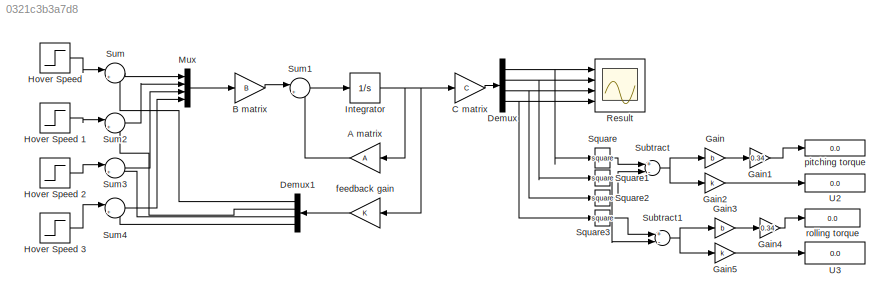
MODEL slx_0321c3b3a7d8
KIND model
CONFIG AbsTol = auto
CONFIG EnableMultiTasking = off
CONFIG FixedStep = auto
CONFIG MaxStep = auto
CONFIG MinStep = auto
CONFIG RelTol = 1e-3
CONFIG SampleTimeConstraint = Unconstrained
CONFIG Solver = VariableStepAuto
CONFIG SolverName = VariableStepAuto
CONFIG StartTime = 0.0
CONFIG StopTime = 10.0
BLOCK [Gain] A matrix
  Gain = A
  Multiplication = Matrix(K*u)
  OutDataTypeStr = Inherit: Inherit via internal rule
  ParamDataTypeStr = Inherit: Inherit via internal rule
  SaturateOnIntegerOverflow = off
BLOCK [Gain] B matrix
  Gain = B
  Multiplication = Matrix(K*u)
  OutDataTypeStr = Inherit: Inherit via internal rule
  ParamDataTypeStr = Inherit: Inherit via internal rule
  SaturateOnIntegerOverflow = off
BLOCK [Gain] C matrix 
  Gain = C
  Multiplication = Matrix(K*u)
  OutDataTypeStr = Inherit: Inherit via internal rule
  ParamDataTypeStr = Inherit: Inherit via internal rule
  SaturateOnIntegerOverflow = off
BLOCK [Demux] Demux
  DisplayOption = bar
  Ports = [1, 4]
BLOCK [Demux] Demux1
  DisplayOption = bar
  Ports = [1, 4]
BLOCK [Gain] Gain
  Gain = b
  OutDataTypeStr = Inherit: Inherit via internal rule
  ParamDataTypeStr = Inherit: Inherit via internal rule
  SaturateOnIntegerOverflow = off
BLOCK [Gain] Gain1
  Gain = 0.34
  OutDataTypeStr = Inherit: Inherit via internal rule
  ParamDataTypeStr = Inherit: Inherit via internal rule
  SaturateOnIntegerOverflow = off
BLOCK [Gain] Gain2
  Gain = k
  OutDataTypeStr = Inherit: Inherit via internal rule
  ParamDataTypeStr = Inherit: Inherit via internal rule
  SaturateOnIntegerOverflow = off
BLOCK [Gain] Gain3
  Gain = b
  OutDataTypeStr = Inherit: Inherit via internal rule
  ParamDataTypeStr = Inherit: Inherit via internal rule
  SaturateOnIntegerOverflow = off
BLOCK [Gain] Gain4
  Gain = 0.34
  OutDataTypeStr = Inherit: Inherit via internal rule
  ParamDataTypeStr = Inherit: Inherit via internal rule
  SaturateOnIntegerOverflow = off
BLOCK [Gain] Gain5
  Gain = k
  OutDataTypeStr = Inherit: Inherit via internal rule
  ParamDataTypeStr = Inherit: Inherit via internal rule
  SaturateOnIntegerOverflow = off
BLOCK [Step] Hover Speed 
  Before = 160
  SampleTime = 0
  Time = 1690
BLOCK [Step] Hover Speed 1
  Before = 160
  SampleTime = 0
  Time = 1690
BLOCK [Step] Hover Speed 2
  Before = 160
  SampleTime = 0
  Time = 1690
BLOCK [Step] Hover Speed 3
  Before = 160
  SampleTime = 0
  Time = 1690
BLOCK [Integrator] Integrator 
  InitialCondition = 1
  Ports = [1, 1]
BLOCK [Mux] Mux
  DisplayOption = bar
  Ports = [4, 1]
BLOCK [Scope] Result
  Floating = off
  NumInputPorts = 4
  Ports = [4]
  ScopeSpecificationString = Simulink.scopes.TimeScopeBlockCfg('CurrentConfiguration', extmgr.ConfigurationSet(extmgr.Configuration('Core','General UI',true,'FigureColor',[1 1 1]),extmgr.Configuration('Core','Source UI',true),extmgr.Configuration('Sources','WiredSimulink',true),extmgr.Configuration('Visuals','Time Domain',true,'SerializedDisplays',{struct('MinYLimReal','-0.10415','MaxYLimReal','1.16412','YLabelReal','','MinYL...<+4634ch>
BLOCK [Math] Square
  Operator = square
  Ports = [1, 1]
  SignedPower = off
BLOCK [Math] Square1
  Operator = square
  Ports = [1, 1]
  SignedPower = off
BLOCK [Math] Square2
  Operator = square
  Ports = [1, 1]
  SignedPower = off
BLOCK [Math] Square3
  Operator = square
  Ports = [1, 1]
  SignedPower = off
BLOCK [Sum] Subtract
  InputSameDT = off
  Inputs = +-
  OutDataTypeStr = Inherit: Inherit via internal rule
  Ports = [2, 1]
  SaturateOnIntegerOverflow = off
BLOCK [Sum] Subtract1
  InputSameDT = off
  Inputs = +-
  OutDataTypeStr = Inherit: Inherit via internal rule
  Ports = [2, 1]
  SaturateOnIntegerOverflow = off
BLOCK [Sum] Sum
  IconShape = round
  InputSameDT = off
  Inputs = |+-
  OutDataTypeStr = Inherit: Inherit via internal rule
  Ports = [2, 1]
  SaturateOnIntegerOverflow = off
BLOCK [Sum] Sum1
  IconShape = round
  InputSameDT = off
  Inputs = |++
  OutDataTypeStr = Inherit: Inherit via internal rule
  Ports = [2, 1]
  SaturateOnIntegerOverflow = off
BLOCK [Sum] Sum2
  IconShape = round
  InputSameDT = off
  Inputs = |+-
  OutDataTypeStr = Inherit: Inherit via internal rule
  Ports = [2, 1]
  SaturateOnIntegerOverflow = off
BLOCK [Sum] Sum3
  IconShape = round
  InputSameDT = off
  Inputs = |+-
  OutDataTypeStr = Inherit: Inherit via internal rule
  Ports = [2, 1]
  SaturateOnIntegerOverflow = off
BLOCK [Sum] Sum4
  IconShape = round
  InputSameDT = off
  Inputs = |+-
  OutDataTypeStr = Inherit: Inherit via internal rule
  Ports = [2, 1]
  SaturateOnIntegerOverflow = off
BLOCK [Display] U2
  Decimation = 1
  Ports = [1]
BLOCK [Display] U3
  Decimation = 1
  Ports = [1]
BLOCK [Gain] feedback gain 
  Gain = K
  Multiplication = Matrix(K*u)
  OutDataTypeStr = Inherit: Inherit via internal rule
  ParamDataTypeStr = Inherit: Inherit via internal rule
  SaturateOnIntegerOverflow = off
BLOCK [Display] pitching torque
  Decimation = 1
  Ports = [1]
BLOCK [Display] rolling torque
  Decimation = 1
  Ports = [1]
LINE A matrix:1 -> Sum1:2
LINE B matrix:1 -> Sum1:1
LINE C matrix :1 -> Demux:1
LINE Demux1:1 -> Sum:2
LINE Demux1:2 -> Sum2:2
LINE Demux1:3 -> Sum3:2
LINE Demux1:4 -> Sum4:2
NET Demux:1 -> Result:1, Square:1
NET Demux:2 -> Result:2, Square1:1
NET Demux:3 -> Result:3, Square2:1
NET Demux:4 -> Result:4, Square3:1
LINE Gain1:1 -> pitching torque:1
LINE Gain2:1 -> U2:1
LINE Gain3:1 -> Gain4:1
LINE Gain4:1 -> rolling torque:1
LINE Gain5:1 -> U3:1
LINE Gain:1 -> Gain1:1
LINE Hover Speed 1:1 -> Sum2:1
LINE Hover Speed 2:1 -> Sum3:1
LINE Hover Speed 3:1 -> Sum4:1
LINE Hover Speed :1 -> Sum:1
NET Integrator :1 -> A matrix:1, C matrix :1, feedback gain :1
LINE Mux:1 -> B matrix:1
LINE Square1:1 -> Subtract1:2
LINE Square2:1 -> Subtract:2
LINE Square3:1 -> Subtract1:1
LINE Square:1 -> Subtract:1
NET Subtract1:1 -> Gain3:1, Gain5:1
NET Subtract:1 -> Gain2:1, Gain:1
LINE Sum1:1 -> Integrator :1
LINE Sum2:1 -> Mux:2
LINE Sum3:1 -> Mux:3
LINE Sum4:1 -> Mux:4
LINE Sum:1 -> Mux:1
LINE feedback gain :1 -> Demux1:1
note: NET lines group one-source signal fan-out (src -> all destinations, sorted); 1:1 wires keep LINE
